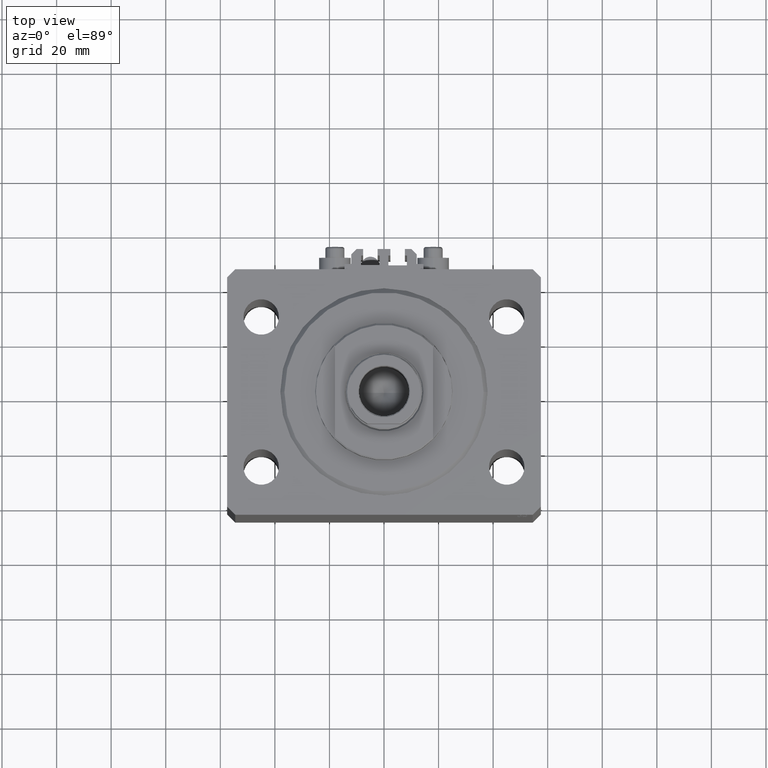
[diagram: clean part render]
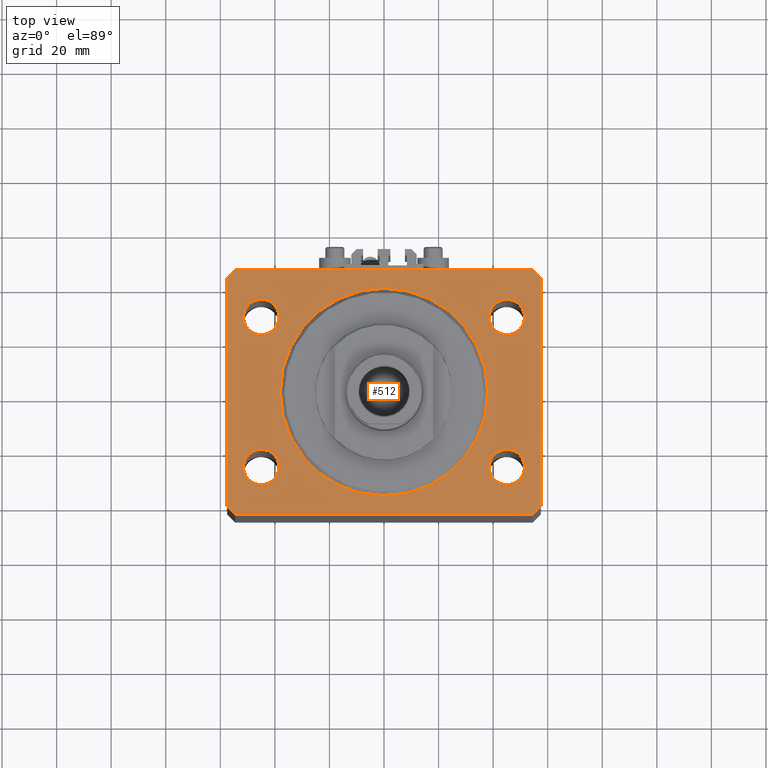
[diagram: same view with one face highlighted and labeled with its STEP entity id]
A machine part, top view. The second image highlights one B-rep face of the part: STEP entity #512.
In plain terms, the highlighted planar face has unit normal (0, 0, 1).
Its self-contained STEP definition (entity closure, byte-faithful):
#436 = DIRECTION ( 'NONE',  ( 0.000000000000000000, 0.000000000000000000, 1.000000000000000000 ) ) ;
#512 = ADVANCED_FACE ( 'NONE', ( #37677, #7731, #4320, #26227, #11149, #25995 ), #10659, .T. ) ;
#675 = DIRECTION ( 'NONE',  ( 1.000000000000000000, 0.000000000000000000, -0.000000000000000000 ) ) ;
#752 = EDGE_CURVE ( 'NONE', #20758, #16097, #44755, .T. ) ;
#1015 = LINE ( 'NONE', #39443, #47079 ) ;
#1035 = ORIENTED_EDGE ( 'NONE', *, *, #42884, .T. ) ;
#1063 = CARTESIAN_POINT ( 'NONE',  ( 54.50000000000000711, -44.99999999999998579, 0.000000000000000000 ) ) ;
#1524 = EDGE_CURVE ( 'NONE', #18169, #2224, #2027, .T. ) ;
#1572 = CARTESIAN_POINT ( 'NONE',  ( -54.50000000000000711, -45.00000000000000000, 0.000000000000000000 ) ) ;
#1738 = CARTESIAN_POINT ( 'NONE',  ( 51.50000000000000000, 27.49999999999999289, 0.000000000000000000 ) ) ;
#2027 = CIRCLE ( 'NONE', #29238, 6.499999999999999112 ) ;
#2224 = VERTEX_POINT ( 'NONE', #46953 ) ;
#2277 = EDGE_CURVE ( 'NONE', #22806, #41739, #14805, .T. ) ;
#2494 = DIRECTION ( 'NONE',  ( 1.000000000000000000, 0.000000000000000000, 0.000000000000000000 ) ) ;
#2496 = EDGE_CURVE ( 'NONE', #7797, #23942, #24572, .T. ) ;
#2683 = DIRECTION ( 'NONE',  ( -1.000000000000000000, -2.546383084002638829E-16, 0.000000000000000000 ) ) ;
#3251 = EDGE_CURVE ( 'NONE', #45680, #11469, #25369, .T. ) ;
#3595 = AXIS2_PLACEMENT_3D ( 'NONE', #39353, #12594, #12353 ) ;
#3691 = VECTOR ( 'NONE', #27877, 1000.000000000000000 ) ;
#4276 = CIRCLE ( 'NONE', #27604, 6.499999999999999112 ) ;
#4320 = FACE_BOUND ( 'NONE', #20761, .T. ) ;
#4424 = DIRECTION ( 'NONE',  ( 0.000000000000000000, 0.000000000000000000, 1.000000000000000000 ) ) ;
#4578 = CARTESIAN_POINT ( 'NONE',  ( -44.99999999999998579, -27.50000000000000355, 0.000000000000000000 ) ) ;
#5369 = ORIENTED_EDGE ( 'NONE', *, *, #39869, .F. ) ;
#5796 = DIRECTION ( 'NONE',  ( 0.000000000000000000, 0.000000000000000000, 1.000000000000000000 ) ) ;
#5992 = CARTESIAN_POINT ( 'NONE',  ( -57.49999999999998579, 42.00000000000000711, 0.000000000000000000 ) ) ;
#6425 = ORIENTED_EDGE ( 'NONE', *, *, #18545, .F. ) ;
#6541 = DIRECTION ( 'NONE',  ( 0.7071067811865491270, -0.7071067811865459074, 0.000000000000000000 ) ) ;
#6753 = DIRECTION ( 'NONE',  ( 1.000000000000000000, 0.000000000000000000, 0.000000000000000000 ) ) ;
#7003 = CARTESIAN_POINT ( 'NONE',  ( 0.000000000000000000, 0.000000000000000000, 0.000000000000000000 ) ) ;
#7435 = AXIS2_PLACEMENT_3D ( 'NONE', #25936, #14977, #22275 ) ;
#7731 = FACE_BOUND ( 'NONE', #15633, .T. ) ;
#7797 = VERTEX_POINT ( 'NONE', #8778 ) ;
#8775 = AXIS2_PLACEMENT_3D ( 'NONE', #44964, #436, #45447 ) ;
#8778 = CARTESIAN_POINT ( 'NONE',  ( -51.50000000000000000, 27.49999999999999645, 0.000000000000000000 ) ) ;
#9100 = DIRECTION ( 'NONE',  ( 1.000000000000000000, 1.273191542001326317E-16, 0.000000000000000000 ) ) ;
#9315 = DIRECTION ( 'NONE',  ( 0.000000000000000000, 0.000000000000000000, 1.000000000000000000 ) ) ;
#9603 = CARTESIAN_POINT ( 'NONE',  ( 57.50000000000055422, 41.99999999999997868, 0.000000000000000000 ) ) ;
#10155 = CARTESIAN_POINT ( 'NONE',  ( 54.50000000000059686, 45.00000000000002842, 0.000000000000000000 ) ) ;
#10405 = CARTESIAN_POINT ( 'NONE',  ( 45.00000000000000000, 27.49999999999999289, 0.000000000000000000 ) ) ;
#10409 = DIRECTION ( 'NONE',  ( 0.000000000000000000, 0.000000000000000000, 1.000000000000000000 ) ) ;
#10587 = CARTESIAN_POINT ( 'NONE',  ( 38.49999999999998579, -27.50000000000000355, 0.000000000000000000 ) ) ;
#10659 = PLANE ( 'NONE',  #19036 ) ;
#11149 = FACE_BOUND ( 'NONE', #34387, .T. ) ;
#11444 = VERTEX_POINT ( 'NONE', #19695 ) ;
#11469 = VERTEX_POINT ( 'NONE', #20417 ) ;
#11508 = DIRECTION ( 'NONE',  ( 0.000000000000000000, 0.000000000000000000, 1.000000000000000000 ) ) ;
#12058 = CIRCLE ( 'NONE', #42463, 6.499999999999999112 ) ;
#12353 = DIRECTION ( 'NONE',  ( 1.000000000000000000, 0.000000000000000000, 0.000000000000000000 ) ) ;
#12373 = ORIENTED_EDGE ( 'NONE', *, *, #19416, .T. ) ;
#12594 = DIRECTION ( 'NONE',  ( 0.000000000000000000, 0.000000000000000000, 1.000000000000000000 ) ) ;
#12696 = ORIENTED_EDGE ( 'NONE', *, *, #2277, .T. ) ;
#13759 = VECTOR ( 'NONE', #18970, 1000.000000000000000 ) ;
#13802 = VECTOR ( 'NONE', #36482, 1000.000000000000000 ) ;
#14322 = CARTESIAN_POINT ( 'NONE',  ( -57.50000000000000711, -42.00000000000000711, 0.000000000000000000 ) ) ;
#14805 = LINE ( 'NONE', #14322, #40900 ) ;
#14977 = DIRECTION ( 'NONE',  ( 0.000000000000000000, 0.000000000000000000, 1.000000000000000000 ) ) ;
#15383 = VERTEX_POINT ( 'NONE', #38356 ) ;
#15633 = EDGE_LOOP ( 'NONE', ( #18752, #38789 ) ) ;
#16097 = VERTEX_POINT ( 'NONE', #1738 ) ;
#16205 = CIRCLE ( 'NONE', #23958, 6.499999999999999112 ) ;
#16233 = EDGE_CURVE ( 'NONE', #11469, #45680, #44417, .T. ) ;
#16551 = VERTEX_POINT ( 'NONE', #10587 ) ;
#16565 = CIRCLE ( 'NONE', #8775, 6.499999999999999112 ) ;
#17100 = CARTESIAN_POINT ( 'NONE',  ( 44.99999999999998579, -27.50000000000000355, 0.000000000000000000 ) ) ;
#18169 = VERTEX_POINT ( 'NONE', #47963 ) ;
#18332 = CARTESIAN_POINT ( 'NONE',  ( -44.99999999999998579, -27.50000000000000355, 0.000000000000000000 ) ) ;
#18545 = EDGE_CURVE ( 'NONE', #23942, #7797, #16565, .T. ) ;
#18752 = ORIENTED_EDGE ( 'NONE', *, *, #21242, .F. ) ;
#18970 = DIRECTION ( 'NONE',  ( -2.478176394252581141E-16, -1.000000000000000000, 0.000000000000000000 ) ) ;
#19036 = AXIS2_PLACEMENT_3D ( 'NONE', #19154, #40840, #675 ) ;
#19154 = CARTESIAN_POINT ( 'NONE',  ( 0.000000000000000000, 0.000000000000000000, 0.000000000000000000 ) ) ;
#19416 = EDGE_CURVE ( 'NONE', #33124, #34383, #31424, .T. ) ;
#19525 = ORIENTED_EDGE ( 'NONE', *, *, #28337, .F. ) ;
#19666 = CARTESIAN_POINT ( 'NONE',  ( 38.00000000000000000, 0.000000000000000000, 0.000000000000000000 ) ) ;
#19695 = CARTESIAN_POINT ( 'NONE',  ( -54.49999999999999289, 45.00000000000000000, 0.000000000000000000 ) ) ;
#19765 = ORIENTED_EDGE ( 'NONE', *, *, #21597, .F. ) ;
#19931 = CARTESIAN_POINT ( 'NONE',  ( -57.49999999999998579, 42.00000000000000711, 0.000000000000000000 ) ) ;
#19950 = CARTESIAN_POINT ( 'NONE',  ( -54.50000000000000711, -45.00000000000000000, 0.000000000000000000 ) ) ;
#20417 = CARTESIAN_POINT ( 'NONE',  ( -38.00000000000000000, 4.653657836759941941E-15, 0.000000000000000000 ) ) ;
#20758 = VERTEX_POINT ( 'NONE', #41646 ) ;
#20761 = EDGE_LOOP ( 'NONE', ( #19765, #19525 ) ) ;
#20769 = EDGE_CURVE ( 'NONE', #31832, #11444, #1015, .T. ) ;
#20920 = ORIENTED_EDGE ( 'NONE', *, *, #25364, .T. ) ;
#20956 = VECTOR ( 'NONE', #9100, 1000.000000000000000 ) ;
#21242 = EDGE_CURVE ( 'NONE', #2224, #18169, #12058, .T. ) ;
#21597 = EDGE_CURVE ( 'NONE', #40543, #16551, #4276, .T. ) ;
#22097 = CARTESIAN_POINT ( 'NONE',  ( -54.49999999999999289, 45.00000000000000000, 0.000000000000000000 ) ) ;
#22275 = DIRECTION ( 'NONE',  ( 1.000000000000000000, 0.000000000000000000, 0.000000000000000000 ) ) ;
#22806 = VERTEX_POINT ( 'NONE', #35258 ) ;
#23443 = DIRECTION ( 'NONE',  ( 0.7071067811865483499, 0.7071067811865466846, 0.000000000000000000 ) ) ;
#23855 = DIRECTION ( 'NONE',  ( 6.443258625056715108E-15, 1.000000000000000000, 0.000000000000000000 ) ) ;
#23942 = VERTEX_POINT ( 'NONE', #41772 ) ;
#23958 = AXIS2_PLACEMENT_3D ( 'NONE', #10405, #5796, #6753 ) ;
#24307 = CIRCLE ( 'NONE', #47623, 6.499999999999999112 ) ;
#24572 = CIRCLE ( 'NONE', #3595, 6.499999999999999112 ) ;
#24667 = EDGE_LOOP ( 'NONE', ( #32454, #44109, #45818, #12696, #1035, #20920, #12373, #36333 ) ) ;
#25364 = EDGE_CURVE ( 'NONE', #15383, #33124, #31490, .T. ) ;
#25369 = CIRCLE ( 'NONE', #26937, 38.00000000000000000 ) ;
#25936 = CARTESIAN_POINT ( 'NONE',  ( 45.00000000000000000, 27.49999999999999289, 0.000000000000000000 ) ) ;
#25995 = FACE_OUTER_BOUND ( 'NONE', #24667, .T. ) ;
#26215 = DIRECTION ( 'NONE',  ( 1.000000000000000000, 0.000000000000000000, 0.000000000000000000 ) ) ;
#26227 = FACE_BOUND ( 'NONE', #39303, .T. ) ;
#26303 = ORIENTED_EDGE ( 'NONE', *, *, #2496, .F. ) ;
#26660 = ORIENTED_EDGE ( 'NONE', *, *, #16233, .F. ) ;
#26701 = VECTOR ( 'NONE', #23855, 1000.000000000000000 ) ;
#26726 = DIRECTION ( 'NONE',  ( 1.000000000000000000, 0.000000000000000000, 0.000000000000000000 ) ) ;
#26814 = DIRECTION ( 'NONE',  ( 1.000000000000000000, 0.000000000000000000, 0.000000000000000000 ) ) ;
#26937 = AXIS2_PLACEMENT_3D ( 'NONE', #39248, #39495, #2494 ) ;
#27265 = CARTESIAN_POINT ( 'NONE',  ( 51.49999999999998579, -27.50000000000000355, 0.000000000000000000 ) ) ;
#27604 = AXIS2_PLACEMENT_3D ( 'NONE', #17100, #9315, #31253 ) ;
#27877 = DIRECTION ( 'NONE',  ( -0.7071067811865369146, 0.7071067811865581199, 0.000000000000000000 ) ) ;
#28337 = EDGE_CURVE ( 'NONE', #16551, #40543, #24307, .T. ) ;
#28353 = LINE ( 'NONE', #9603, #3691 ) ;
#29238 = AXIS2_PLACEMENT_3D ( 'NONE', #4578, #45207, #26726 ) ;
#29672 = AXIS2_PLACEMENT_3D ( 'NONE', #7003, #10409, #26215 ) ;
#29977 = EDGE_CURVE ( 'NONE', #34383, #31832, #28353, .T. ) ;
#31253 = DIRECTION ( 'NONE',  ( 1.000000000000000000, 0.000000000000000000, 0.000000000000000000 ) ) ;
#31279 = LINE ( 'NONE', #1572, #20956 ) ;
#31424 = LINE ( 'NONE', #42352, #26701 ) ;
#31490 = LINE ( 'NONE', #1063, #32865 ) ;
#31832 = VERTEX_POINT ( 'NONE', #10155 ) ;
#32357 = ORIENTED_EDGE ( 'NONE', *, *, #3251, .F. ) ;
#32454 = ORIENTED_EDGE ( 'NONE', *, *, #20769, .T. ) ;
#32865 = VECTOR ( 'NONE', #23443, 1000.000000000000000 ) ;
#33032 = EDGE_CURVE ( 'NONE', #46596, #22806, #42087, .T. ) ;
#33124 = VERTEX_POINT ( 'NONE', #42808 ) ;
#33926 = EDGE_CURVE ( 'NONE', #11444, #46596, #44494, .T. ) ;
#34130 = CARTESIAN_POINT ( 'NONE',  ( 44.99999999999998579, -27.50000000000000355, 0.000000000000000000 ) ) ;
#34383 = VERTEX_POINT ( 'NONE', #37088 ) ;
#34387 = EDGE_LOOP ( 'NONE', ( #6425, #26303 ) ) ;
#35258 = CARTESIAN_POINT ( 'NONE',  ( -57.50000000000000711, -42.00000000000000711, 0.000000000000000000 ) ) ;
#36333 = ORIENTED_EDGE ( 'NONE', *, *, #29977, .T. ) ;
#36482 = DIRECTION ( 'NONE',  ( -0.7071067811865483499, -0.7071067811865466846, 0.000000000000000000 ) ) ;
#37088 = CARTESIAN_POINT ( 'NONE',  ( 57.50000000000055422, 41.99999999999997868, 0.000000000000000000 ) ) ;
#37677 = FACE_BOUND ( 'NONE', #41434, .T. ) ;
#38356 = CARTESIAN_POINT ( 'NONE',  ( 54.50000000000000711, -44.99999999999998579, 0.000000000000000000 ) ) ;
#38789 = ORIENTED_EDGE ( 'NONE', *, *, #1524, .F. ) ;
#39248 = CARTESIAN_POINT ( 'NONE',  ( 0.000000000000000000, 0.000000000000000000, 0.000000000000000000 ) ) ;
#39303 = EDGE_LOOP ( 'NONE', ( #5369, #41426 ) ) ;
#39353 = CARTESIAN_POINT ( 'NONE',  ( -45.00000000000000000, 27.49999999999999645, 0.000000000000000000 ) ) ;
#39443 = CARTESIAN_POINT ( 'NONE',  ( 54.50000000000059686, 45.00000000000002842, 0.000000000000000000 ) ) ;
#39495 = DIRECTION ( 'NONE',  ( 0.000000000000000000, 0.000000000000000000, 1.000000000000000000 ) ) ;
#39869 = EDGE_CURVE ( 'NONE', #16097, #20758, #16205, .T. ) ;
#40543 = VERTEX_POINT ( 'NONE', #27265 ) ;
#40840 = DIRECTION ( 'NONE',  ( 0.000000000000000000, 0.000000000000000000, 1.000000000000000000 ) ) ;
#40900 = VECTOR ( 'NONE', #6541, 1000.000000000000114 ) ;
#41426 = ORIENTED_EDGE ( 'NONE', *, *, #752, .F. ) ;
#41434 = EDGE_LOOP ( 'NONE', ( #32357, #26660 ) ) ;
#41646 = CARTESIAN_POINT ( 'NONE',  ( 38.50000000000000000, 27.49999999999999289, 0.000000000000000000 ) ) ;
#41739 = VERTEX_POINT ( 'NONE', #19950 ) ;
#41772 = CARTESIAN_POINT ( 'NONE',  ( -38.50000000000000000, 27.49999999999999645, 0.000000000000000000 ) ) ;
#42087 = LINE ( 'NONE', #19931, #13759 ) ;
#42352 = CARTESIAN_POINT ( 'NONE',  ( 57.50000000000000711, -41.99999999999998579, 0.000000000000000000 ) ) ;
#42463 = AXIS2_PLACEMENT_3D ( 'NONE', #18332, #11508, #44372 ) ;
#42808 = CARTESIAN_POINT ( 'NONE',  ( 57.50000000000000711, -41.99999999999998579, 0.000000000000000000 ) ) ;
#42884 = EDGE_CURVE ( 'NONE', #41739, #15383, #31279, .T. ) ;
#44109 = ORIENTED_EDGE ( 'NONE', *, *, #33926, .T. ) ;
#44372 = DIRECTION ( 'NONE',  ( 1.000000000000000000, 0.000000000000000000, 0.000000000000000000 ) ) ;
#44417 = CIRCLE ( 'NONE', #29672, 38.00000000000000000 ) ;
#44494 = LINE ( 'NONE', #22097, #13802 ) ;
#44755 = CIRCLE ( 'NONE', #7435, 6.499999999999999112 ) ;
#44964 = CARTESIAN_POINT ( 'NONE',  ( -45.00000000000000000, 27.49999999999999645, 0.000000000000000000 ) ) ;
#45207 = DIRECTION ( 'NONE',  ( 0.000000000000000000, 0.000000000000000000, 1.000000000000000000 ) ) ;
#45447 = DIRECTION ( 'NONE',  ( 1.000000000000000000, 0.000000000000000000, 0.000000000000000000 ) ) ;
#45680 = VERTEX_POINT ( 'NONE', #19666 ) ;
#45818 = ORIENTED_EDGE ( 'NONE', *, *, #33032, .T. ) ;
#46596 = VERTEX_POINT ( 'NONE', #5992 ) ;
#46953 = CARTESIAN_POINT ( 'NONE',  ( -38.49999999999998579, -27.50000000000000355, 0.000000000000000000 ) ) ;
#47079 = VECTOR ( 'NONE', #2683, 1000.000000000000000 ) ;
#47623 = AXIS2_PLACEMENT_3D ( 'NONE', #34130, #4424, #26814 ) ;
#47963 = CARTESIAN_POINT ( 'NONE',  ( -51.49999999999998579, -27.50000000000000355, 0.000000000000000000 ) ) ;